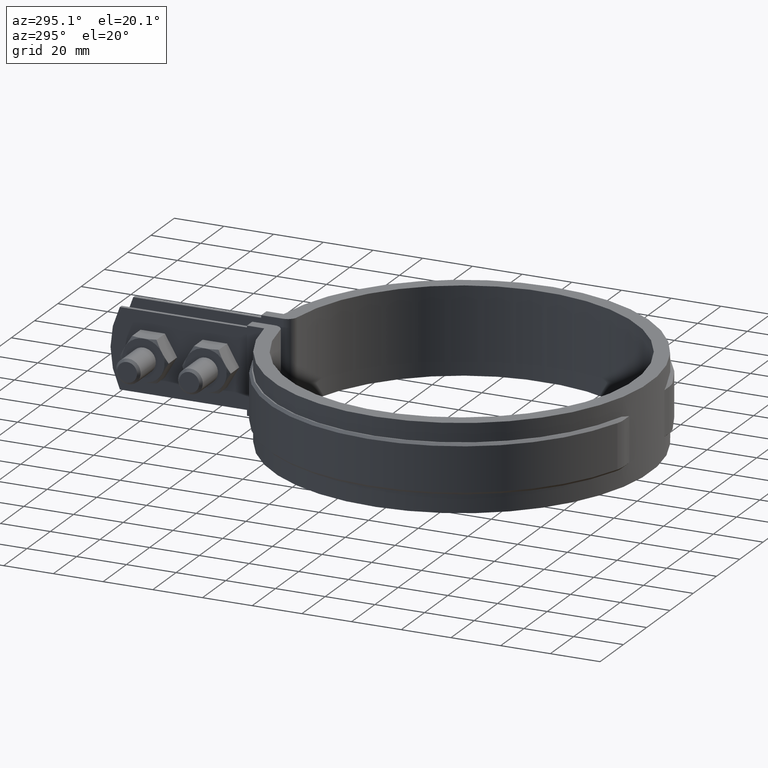
[diagram: clean part render]
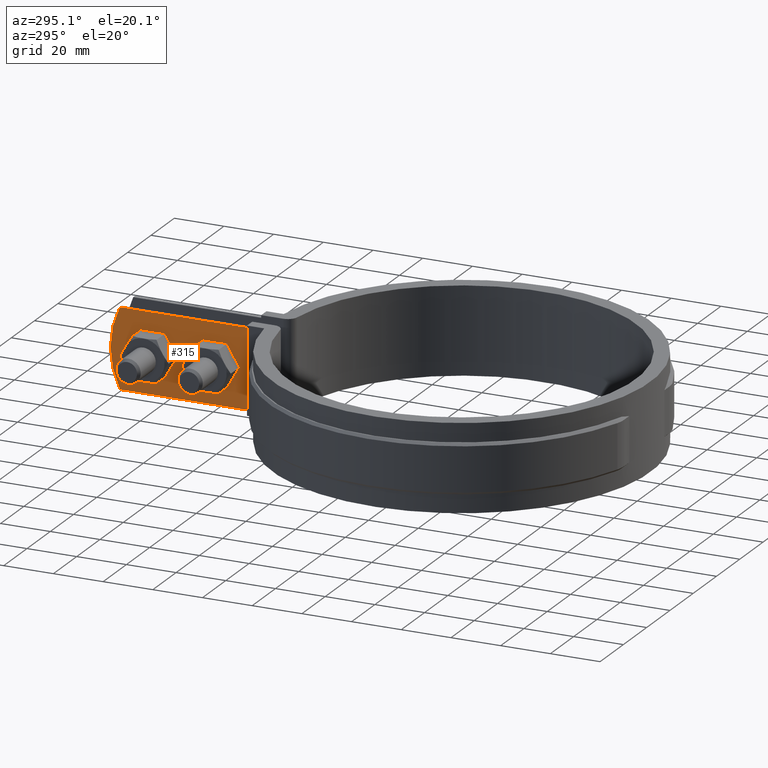
[diagram: same view with one face highlighted and labeled with its STEP entity id]
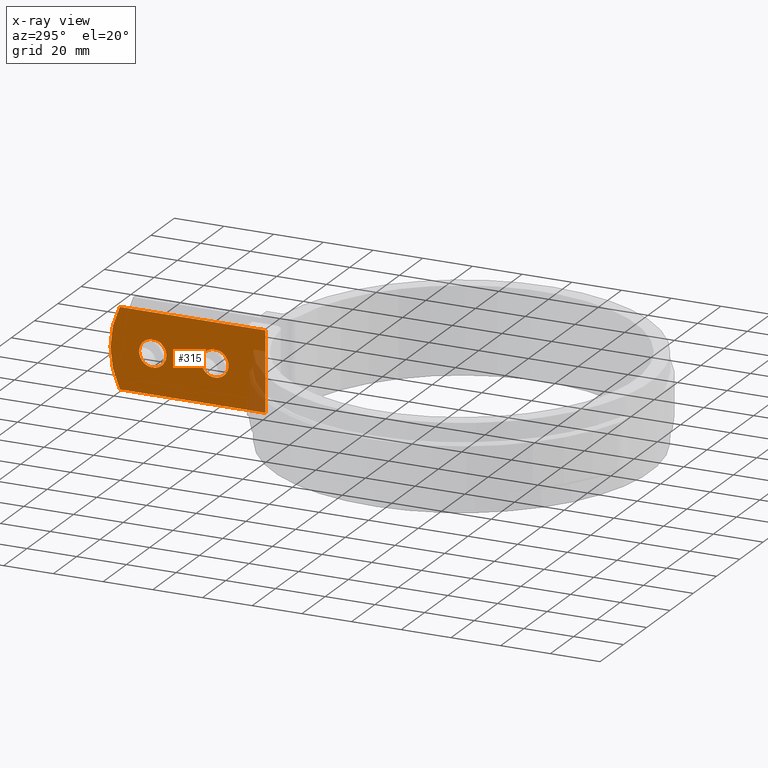
[diagram: x-ray of the same camera — body ghosted, the highlighted face saturated]
A machine part, auxiliary view. The second image highlights one B-rep face of the part: STEP entity #315.
The next image is the same camera in x-ray: the body ghosted, the highlighted face saturated — about 8% of this face is hidden behind the body in this view.
In plain terms, the highlighted planar face has unit normal (1, -0, 0).
Its self-contained STEP definition (entity closure, byte-faithful):
#315 = ADVANCED_FACE( '', ( #466, #467, #468 ), #469, .F. );
#466 = FACE_OUTER_BOUND( '', #798, .T. );
#467 = FACE_BOUND( '', #799, .T. );
#468 = FACE_BOUND( '', #800, .T. );
#469 = PLANE( '', #801 );
#798 = EDGE_LOOP( '', ( #1876, #1877, #1878, #1879 ) );
#799 = EDGE_LOOP( '', ( #1880 ) );
#800 = EDGE_LOOP( '', ( #1881 ) );
#801 = AXIS2_PLACEMENT_3D( '', #1882, #1883, #1884 );
#1876 = ORIENTED_EDGE( '', *, *, #4616, .F. );
#1877 = ORIENTED_EDGE( '', *, *, #4617, .T. );
#1878 = ORIENTED_EDGE( '', *, *, #4618, .T. );
#1879 = ORIENTED_EDGE( '', *, *, #4619, .F. );
#1880 = ORIENTED_EDGE( '', *, *, #4620, .F. );
#1881 = ORIENTED_EDGE( '', *, *, #4621, .F. );
#1882 = CARTESIAN_POINT( '', ( -6.49999999999999, 138.297380707447, 4.33680868994202E-016 ) );
#1883 = DIRECTION( '', ( 1.00000000000000, -6.02334540269725E-017, 0.000000000000000 ) );
#1884 = DIRECTION( '', ( 0.000000000000000, 0.000000000000000, 1.00000000000000 ) );
#4616 = EDGE_CURVE( '', #5022, #5023, #5024, .T. );
#4617 = EDGE_CURVE( '', #5022, #5025, #5026, .T. );
#4618 = EDGE_CURVE( '', #5025, #5027, #5028, .T. );
#4619 = EDGE_CURVE( '', #5023, #5027, #5029, .T. );
#4620 = EDGE_CURVE( '', #5030, #5030, #5031, .F. );
#4621 = EDGE_CURVE( '', #5032, #5032, #5033, .F. );
#5022 = VERTEX_POINT( '', #5710 );
#5023 = VERTEX_POINT( '', #5711 );
#5024 = CIRCLE( '', #5712, 36.0000000000000 );
#5025 = VERTEX_POINT( '', #5713 );
#5026 = LINE( '', #5714, #5715 );
#5027 = VERTEX_POINT( '', #5716 );
#5028 = LINE( '', #5717, #5718 );
#5029 = LINE( '', #5719, #5720 );
#5030 = VERTEX_POINT( '', #5721 );
#5031 = CIRCLE( '', #5722, 5.50000000000000 );
#5032 = VERTEX_POINT( '', #5723 );
#5033 = CIRCLE( '', #5724, 5.50000000000000 );
#5710 = CARTESIAN_POINT( '', ( -6.49999999999998, 134.546411700641, -32.0000000000000 ) );
#5711 = CARTESIAN_POINT( '', ( -6.49999999999998, 134.546411700641, 1.08420217248553E-016 ) );
#5712 = AXIS2_PLACEMENT_3D( '', #8519, #8520, #8521 );
#5713 = CARTESIAN_POINT( '', ( -6.50000000000000, 75.9687435726036, -32.0000000000000 ) );
#5714 = CARTESIAN_POINT( '', ( -6.49999999999999, 138.297380707447, -32.0000000000000 ) );
#5715 = VECTOR( '', #8522, 1000.00000000000 );
#5716 = CARTESIAN_POINT( '', ( -6.50000000000000, 75.9687435726036, 4.33680868994202E-016 ) );
#5717 = CARTESIAN_POINT( '', ( -6.50000000000000, 75.9687435726036, 4.33680868994202E-016 ) );
#5718 = VECTOR( '', #8523, 1000.00000000000 );
#5719 = CARTESIAN_POINT( '', ( -6.50000000000000, 5.59026686824331E-014, 4.33680868994202E-016 ) );
#5720 = VECTOR( '', #8524, 1000.00000000000 );
#5721 = CARTESIAN_POINT( '', ( -6.49999999999999, 126.797380707447, -16.0000000000000 ) );
#5722 = AXIS2_PLACEMENT_3D( '', #8525, #8526, #8527 );
#5723 = CARTESIAN_POINT( '', ( -6.49999999999999, 101.797380707447, -16.0000000000000 ) );
#5724 = AXIS2_PLACEMENT_3D( '', #8528, #8529, #8530 );
#8519 = CARTESIAN_POINT( '', ( -6.49999999999998, 102.297380707447, -16.0000000000000 ) );
#8520 = DIRECTION( '', ( 1.00000000000000, -6.02334540269725E-017, 0.000000000000000 ) );
#8521 = DIRECTION( '', ( 6.02334540269725E-017, 1.00000000000000, 0.000000000000000 ) );
#8522 = DIRECTION( '', ( -6.02334540269725E-017, -1.00000000000000, 0.000000000000000 ) );
#8523 = DIRECTION( '', ( 0.000000000000000, 0.000000000000000, 1.00000000000000 ) );
#8524 = DIRECTION( '', ( -6.02334540269725E-017, -1.00000000000000, 0.000000000000000 ) );
#8525 = CARTESIAN_POINT( '', ( -6.49999999999999, 121.297380707447, -16.0000000000000 ) );
#8526 = DIRECTION( '', ( 1.00000000000000, -6.02334540269725E-017, 0.000000000000000 ) );
#8527 = DIRECTION( '', ( 6.02334540269725E-017, 1.00000000000000, 0.000000000000000 ) );
#8528 = CARTESIAN_POINT( '', ( -6.49999999999999, 96.2973807074468, -16.0000000000000 ) );
#8529 = DIRECTION( '', ( 1.00000000000000, -6.02334540269725E-017, 0.000000000000000 ) );
#8530 = DIRECTION( '', ( 6.02334540269725E-017, 1.00000000000000, 0.000000000000000 ) );